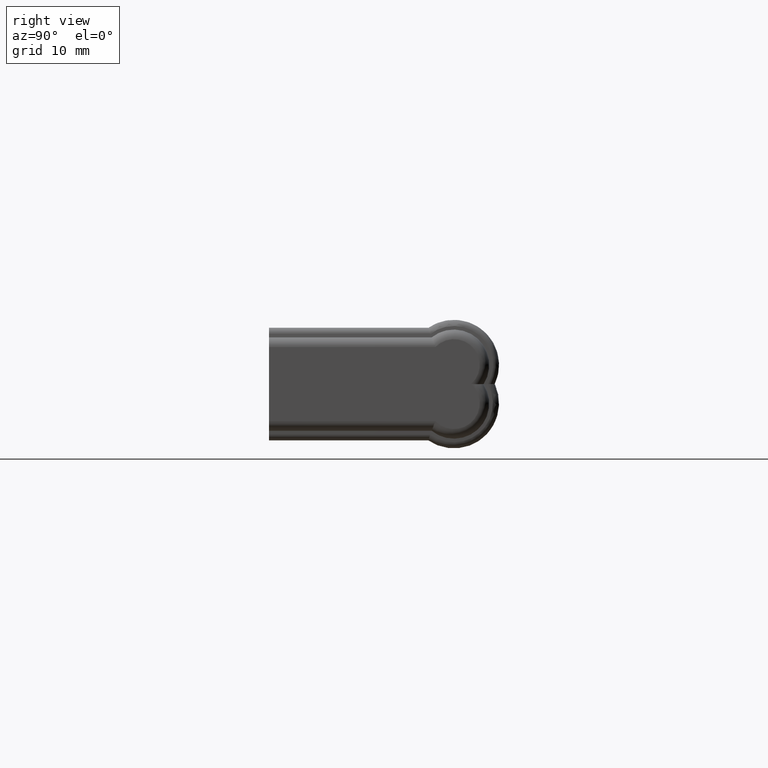
[diagram: clean part render]
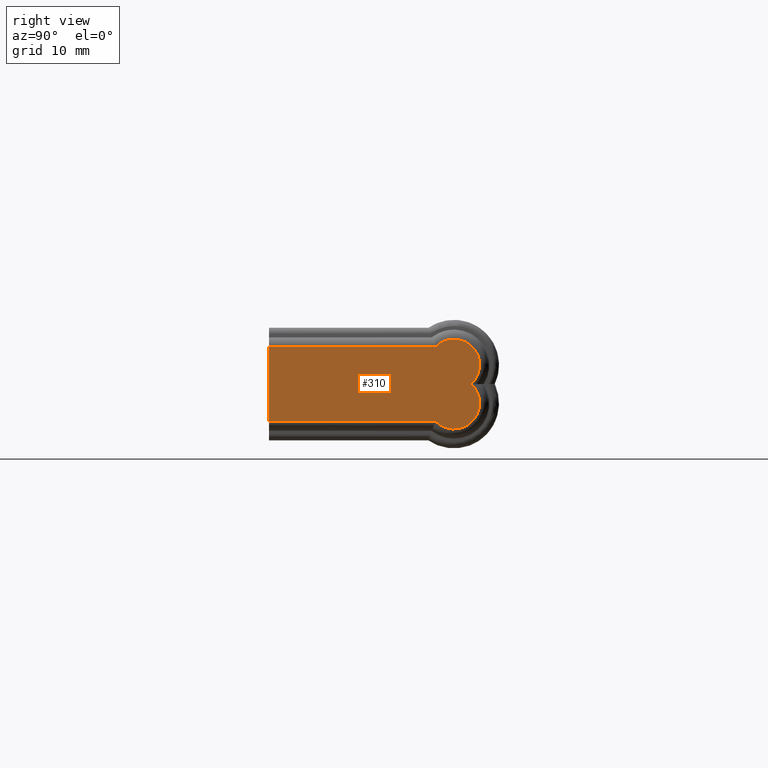
[diagram: same view with one face highlighted and labeled with its STEP entity id]
A machine part, right view. The second image highlights one B-rep face of the part: STEP entity #310.
In plain terms, the highlighted planar face has unit normal (1, 0, 0).
Its self-contained STEP definition (entity closure, byte-faithful):
#310 = ADVANCED_FACE( '', ( #1096 ), #1097, .T. );
#1096 = FACE_OUTER_BOUND( '', #2201, .T. );
#1097 = PLANE( '', #2202 );
#2201 = EDGE_LOOP( '', ( #4972, #4973, #4974, #4975, #4976 ) );
#2202 = AXIS2_PLACEMENT_3D( '', #4977, #4978, #4979 );
#4972 = ORIENTED_EDGE( '', *, *, #8393, .T. );
#4973 = ORIENTED_EDGE( '', *, *, #8390, .T. );
#4974 = ORIENTED_EDGE( '', *, *, #8377, .T. );
#4975 = ORIENTED_EDGE( '', *, *, #8396, .T. );
#4976 = ORIENTED_EDGE( '', *, *, #8395, .T. );
#4977 = CARTESIAN_POINT( '', ( 53.0000000000000, -3.46944695195361E-015, 7.25000000000002 ) );
#4978 = DIRECTION( '', ( 1.00000000000000, 3.31166777813623E-032, 1.80284751248131E-016 ) );
#4979 = DIRECTION( '', ( -1.80284751248131E-016, 1.83690953073357E-016, 1.00000000000000 ) );
#8377 = EDGE_CURVE( '', #10529, #10527, #10530, .T. );
#8390 = EDGE_CURVE( '', #10546, #10529, #10547, .F. );
#8393 = EDGE_CURVE( '', #10549, #10546, #10551, .T. );
#8395 = EDGE_CURVE( '', #10552, #10549, #10554, .T. );
#8396 = EDGE_CURVE( '', #10527, #10552, #10555, .T. );
#10527 = VERTEX_POINT( '', #14946 );
#10529 = VERTEX_POINT( '', #14948 );
#10530 = LINE( '', #14949, #14950 );
#10546 = VERTEX_POINT( '', #14972 );
#10547 = LINE( '', #14973, #14974 );
#10549 = VERTEX_POINT( '', #14987 );
#10551 = CIRCLE( '', #15002, 4.00000000000001 );
#10552 = VERTEX_POINT( '', #15003 );
#10554 = CIRCLE( '', #15016, 4.00000000000001 );
#10555 = LINE( '', #15017, #15018 );
#14946 = CARTESIAN_POINT( '', ( 53.0000000000000, -3.46944695195361E-015, -5.74999999999998 ) );
#14948 = CARTESIAN_POINT( '', ( 53.0000000000000, -3.46944695195361E-015, 5.75000000000002 ) );
#14949 = CARTESIAN_POINT( '', ( 53.0000000000000, -3.46944695195361E-015, 7.25000000000002 ) );
#14950 = VECTOR( '', #18576, 1000.00000000000 );
#14972 = CARTESIAN_POINT( '', ( 53.0000000000000, 25.8442191741169, 5.75000000000001 ) );
#14973 = CARTESIAN_POINT( '', ( 53.0000000000000, -3.46944695195361E-015, 5.75000000000002 ) );
#14974 = VECTOR( '', #18601, 1000.00000000000 );
#14987 = CARTESIAN_POINT( '', ( 53.0000000000000, 31.3985808026659, 0.000000000000000 ) );
#15002 = AXIS2_PLACEMENT_3D( '', #18602, #18603, #18604 );
#15003 = CARTESIAN_POINT( '', ( 53.0000000000000, 25.8442191741169, -5.74999999999999 ) );
#15016 = AXIS2_PLACEMENT_3D( '', #18605, #18606, #18607 );
#15017 = CARTESIAN_POINT( '', ( 53.0000000000000, -3.46944695195361E-015, -5.74999999999998 ) );
#15018 = VECTOR( '', #18608, 1000.00000000000 );
#18576 = DIRECTION( '', ( 1.80284751248131E-016, -1.83690953073357E-016, -1.00000000000000 ) );
#18601 = DIRECTION( '', ( 0.000000000000000, 1.00000000000000, -1.83690953073357E-016 ) );
#18602 = CARTESIAN_POINT( '', ( 53.0000000000000, 28.7272077938642, 2.97720779386421 ) );
#18603 = DIRECTION( '', ( 1.00000000000000, 3.31166777813623E-032, 1.80284751248131E-016 ) );
#18604 = DIRECTION( '', ( 1.80284751248131E-016, -1.83690953073357E-016, -1.00000000000000 ) );
#18605 = CARTESIAN_POINT( '', ( 53.0000000000000, 28.7272077938642, -2.97720779386421 ) );
#18606 = DIRECTION( '', ( 1.00000000000000, 3.31166777813623E-032, 1.80284751248131E-016 ) );
#18607 = DIRECTION( '', ( 1.80284751248131E-016, -1.83690953073357E-016, -1.00000000000000 ) );
#18608 = DIRECTION( '', ( 0.000000000000000, 1.00000000000000, -1.83690953073357E-016 ) );